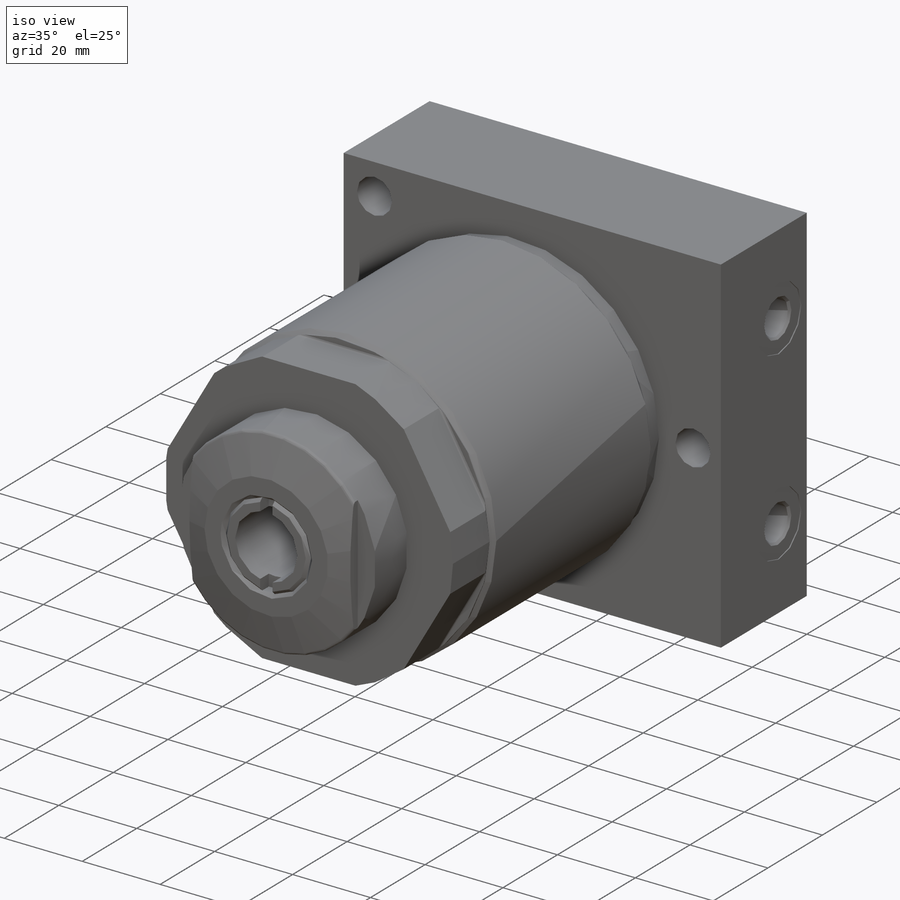
[diagram: iso view]
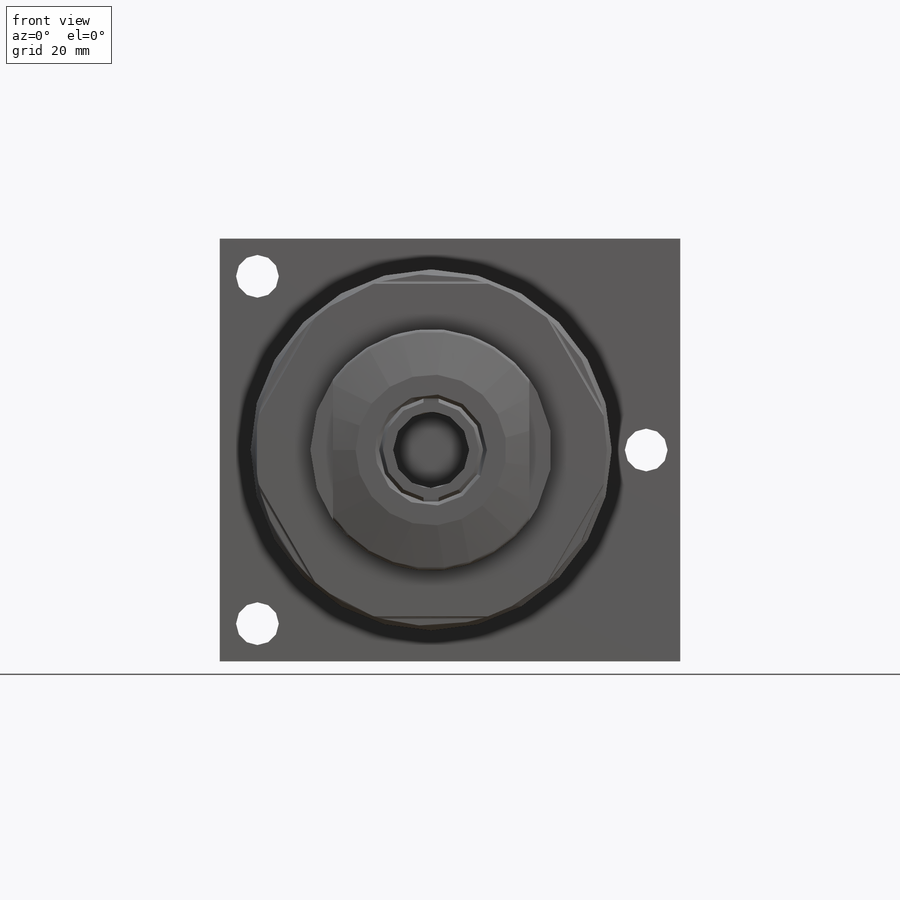
[diagram: front view]
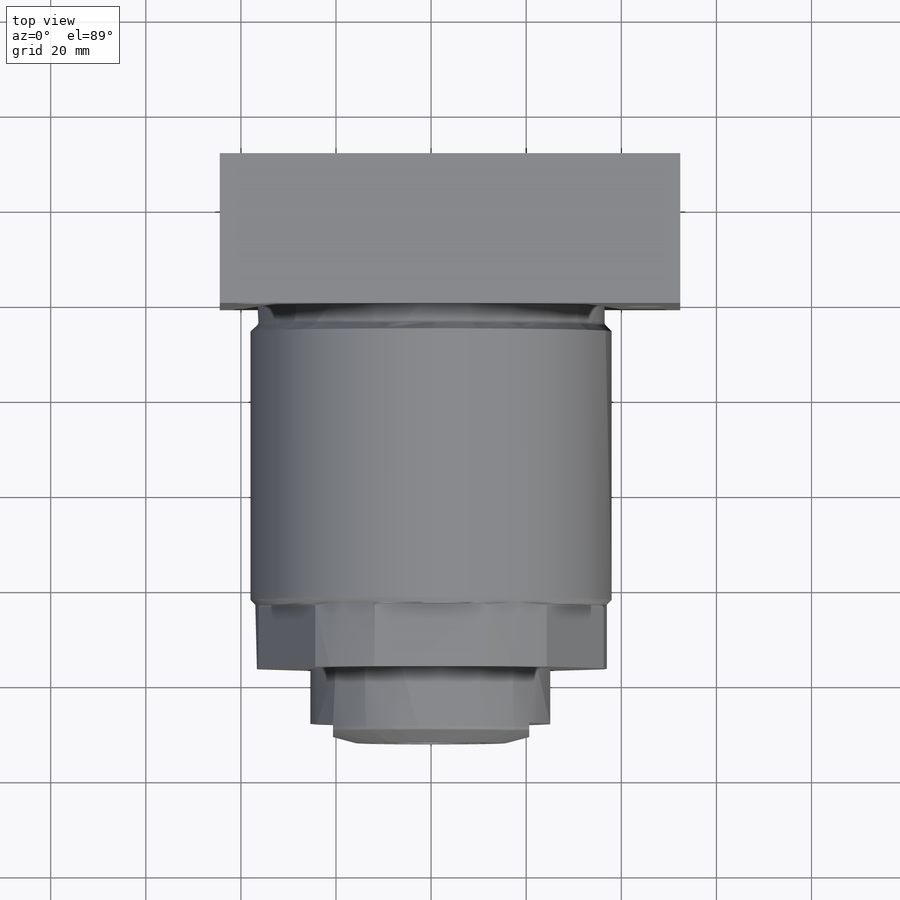
[diagram: top view]
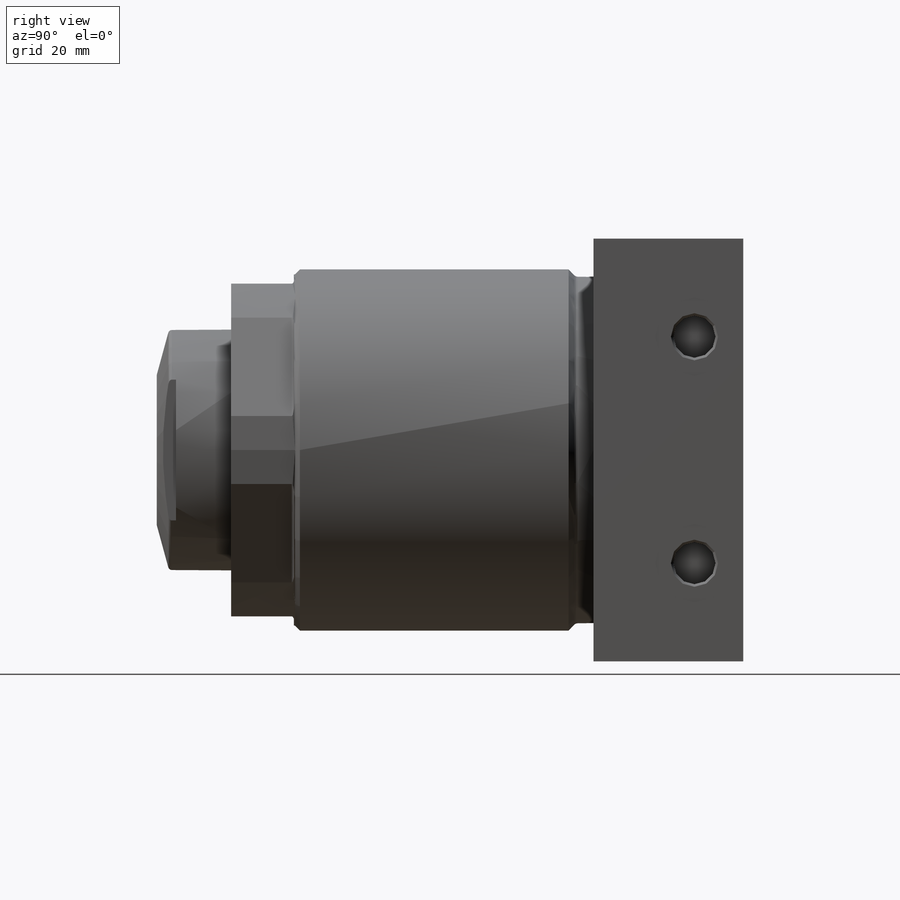
[diagram: right view]
SOLIDWORKS PART (.sldprt)
format: sldprt  version: not decoded by parser v0  size: 401,920 bytes
history: native  units: mm
features: sketch x11, cut_extrude x4, revolve x2, cut_revolve x2, material x1, pattern_circular x1, extrude x1, hole x1, plane x1, pattern_linear x1 (+11 scaffold rows collapsed)
feature tree (36):
  scaffold x11  (default folders/planes/origin — collapsed)
  material  "Alloy Steel"
  sketch  "Sketch1"  dims[c1.D3=0.9144mm c1.D1=27.9908mm c1.D2=4.6736mm c2.D3=0.8128mm c2.D4=24.0792mm c2.D5=72.974mm c2.D6=17.5768mm c2.D7=75.946mm c2.D8=~16.415711mm c3.D8=45.0deg c3.D9=96.85mm c3.D10=73.939mm c3.D11=~8.100487mm c4.D11=45.0deg c4.D12=13.462mm c4.D4=24.003mm]
  revolve  "Revolve1"  Angle=360deg
  sketch  "Sketch2"  dims[D4=0.508mm D1=69.977mm D2=13.208mm D3=3.175mm]
  cut_extrude  "Cut-Extrude1"  [1 undecoded]
  pattern_circular  "CirPattern1"  Count=6 Angle=360deg
  sketch  "Sketch6"  dims[c1.D1=76.2mm c1.D2=~29.301471mm c2.D2=90.0deg c2.D3=31.496mm c2.D4=96.85mm c2.D5=44.45mm]
  extrude  "Extrude1"  Depth=88.9mm
  sketch  "Sketch3"  dims[c1.D1=0.787mm c1.D2=50.8mm c1.D3=57.0484mm c1.D4=3.175mm c1.D5=31.75mm c2.D3=123.33mm]
  revolve  "Revolve2"  Angle=360deg
  sketch  "Sketch4"  dims[D1=16.002mm]
  cut_extrude  "Cut-Extrude2"  Depth=22.098mm
  hole  "Hole1"  Diameter=8.992mm Depth=31.496mm
  sketch  "Sketch8"  dims[D1=36.5252mm D2=36.5252mm D3=45.2374mm]
  sketch  "Sketch7"  dims[Diameter=8.992mm Depth=31.496mm]
  plane  "Plane1"  Offset=23.813mm
  sketch  "Sketch9"  dims[c1.D1=10.261mm c1.D2=16.51mm c1.D3=0.254mm c1.D4=8.8392mm c1.D5=10.5664mm c1.D6=~1.396103mm c2.D6=45.0deg c2.D7=9.906mm]
  cut_revolve  "Cut-Revolve2"  Angle=360deg
  pattern_linear  "LPattern1"  Count1=2 Count2=1 Spacing1=47.626mm Spacing2=2.54mm
  sketch  "Sketch12"  dims[D1=41.275mm D2=4.039mm D3=10.0mm D4=10.0mm]
  cut_extrude  "Cut-Extrude3"  [1 undecoded]
  sketch  "Sketch13"  dims[c1.D1=~1.861454mm c2.D1=45.0deg c2.D2=0.813mm c2.D3=10.9345mm]
  cut_revolve  "Cut-Revolve4"  Angle=360deg
  sketch  "Sketch14"  dims[D1=3.175mm]
  cut_extrude  "Cut-Extrude4"  Depth=3.175mm
decode coverage: 21 of 23 modeling features carry decoded parameters
note: ~ marks probable driven/reference dimensions
note: 2 parameter values undecoded
note: suppression state not decoded; provenance and decode notes live in map.json
